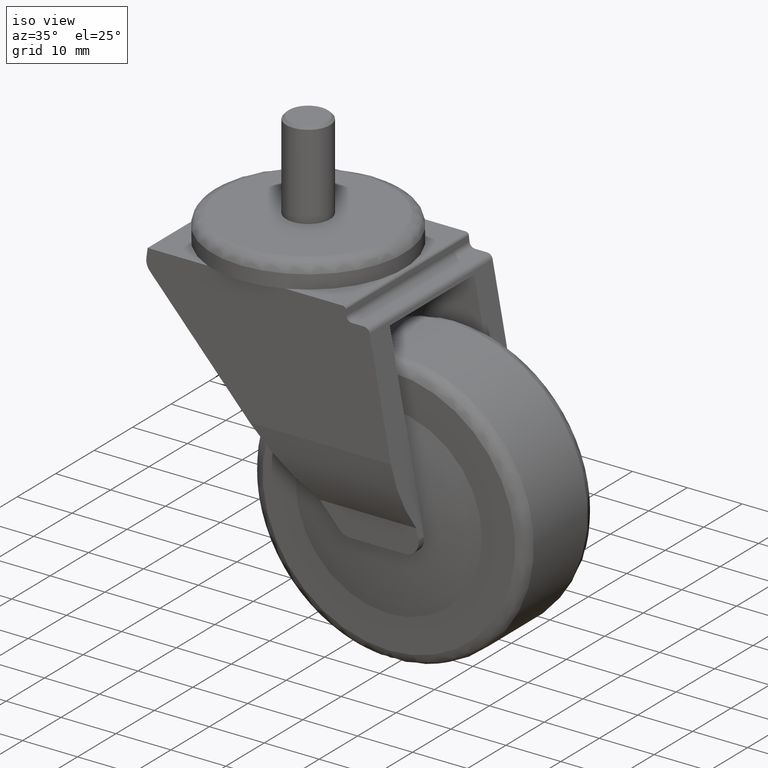
[diagram: clean part render]
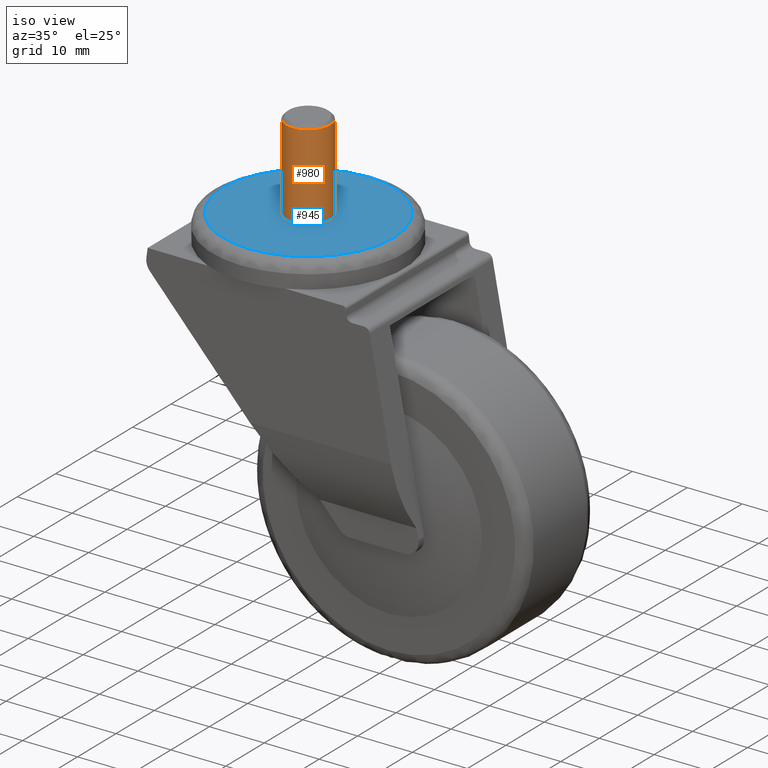
[diagram: same view with the hole feature highlighted: cylindrical wall and planar end face, labeled with their STEP entity ids]
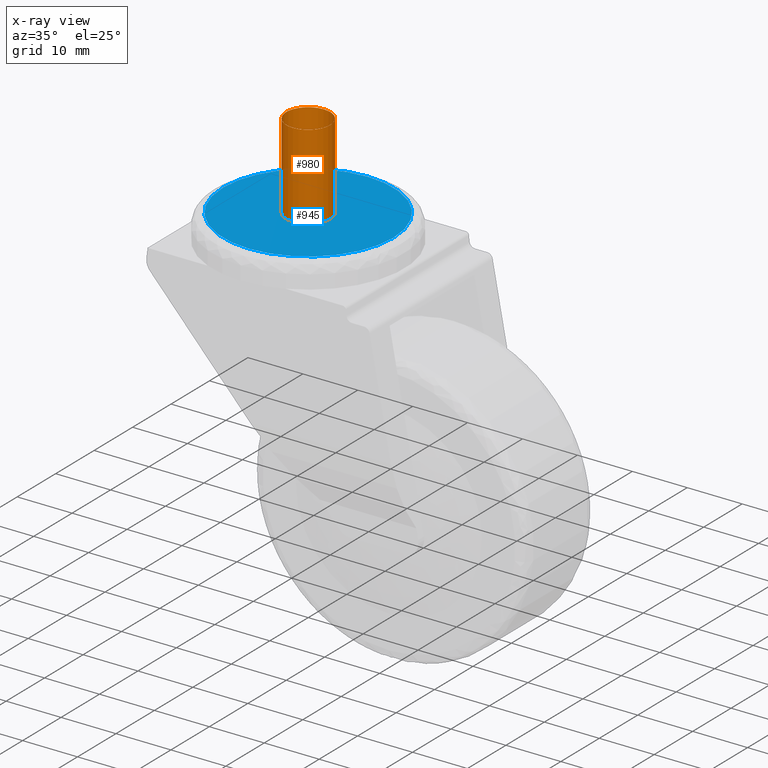
[diagram: x-ray of the same camera — body ghosted, the hole faces saturated]
A machine part, iso view. The highlighted faces form one hole feature of diameter 8 mm: the cylindrical wall (entity #980, orange) and its adjacent planar end face (entity #945, blue) — they share a circular edge in the B-rep.
The next image is the same camera in x-ray (body ghosted, the hole faces saturated) — the bore reads through the body.
Wall:
#925=CARTESIAN_POINT('',(0.0,-3.999999999983629,2.449294E-016));
#926=VERTEX_POINT('',#925);
#927=CARTESIAN_POINT('',(0.0,3.999999999983629,-2.449294E-016));
#928=VERTEX_POINT('',#927);
#929=CARTESIAN_POINT('',(0.0,0.0,0.0));
#930=DIRECTION('',(0.0,6.123234E-017,1.0));
#931=DIRECTION('',(0.0,1.0,-6.123234E-017));
#932=AXIS2_PLACEMENT_3D('',#929,#930,#931);
#933=CIRCLE('',#932,3.999999999983629);
#934=EDGE_CURVE('',#926,#928,#933,.T.);
#936=CARTESIAN_POINT('',(0.0,0.0,0.0));
#937=DIRECTION('',(0.0,6.123234E-017,1.0));
#938=DIRECTION('',(0.0,1.0,-6.123234E-017));
#939=AXIS2_PLACEMENT_3D('',#936,#937,#938);
#940=CIRCLE('',#939,3.999999999983629);
#941=EDGE_CURVE('',#928,#926,#940,.T.);
#946=CARTESIAN_POINT('',(0.0,0.0,0.0));
#947=DIRECTION('',(0.0,6.123234E-017,1.0));
#948=DIRECTION('',(0.0,1.0,-6.123234E-017));
#949=AXIS2_PLACEMENT_3D('',#946,#947,#948);
#950=CYLINDRICAL_SURFACE('',#949,3.999999999983629);
#951=ORIENTED_EDGE('',*,*,#941,.T.);
#952=ORIENTED_EDGE('',*,*,#934,.T.);
#953=CARTESIAN_POINT('',(0.0,3.999999999983630,15.499999999937996));
#954=VERTEX_POINT('',#953);
#955=CARTESIAN_POINT('',(0.0,3.999999999983629,0.0));
#956=DIRECTION('',(0.0,0.0,1.0));
#957=VECTOR('',#956,15.499999999937996);
#958=LINE('',#955,#957);
#959=EDGE_CURVE('',#928,#954,#958,.T.);
#960=ORIENTED_EDGE('',*,*,#959,.T.);
#961=CARTESIAN_POINT('',(0.0,-3.999999999983628,15.499999999938000));
#962=VERTEX_POINT('',#961);
#963=CARTESIAN_POINT('',(0.0,9.491013E-016,15.499999999937998));
#964=DIRECTION('',(0.0,5.053215E-016,1.0));
#965=DIRECTION('',(0.0,1.0,-5.053215E-016));
#966=AXIS2_PLACEMENT_3D('',#963,#964,#965);
#967=CIRCLE('',#966,3.999999999983629);
#968=EDGE_CURVE('',#962,#954,#967,.T.);
#969=ORIENTED_EDGE('',*,*,#968,.F.);
#970=CARTESIAN_POINT('',(0.0,9.491013E-016,15.499999999937998));
#971=DIRECTION('',(0.0,5.053215E-016,1.0));
#972=DIRECTION('',(0.0,1.0,-5.053215E-016));
#973=AXIS2_PLACEMENT_3D('',#970,#971,#972);
#974=CIRCLE('',#973,3.999999999983629);
#975=EDGE_CURVE('',#954,#962,#974,.T.);
#976=ORIENTED_EDGE('',*,*,#975,.F.);
#977=ORIENTED_EDGE('',*,*,#959,.F.);
#978=EDGE_LOOP('',(#951,#952,#960,#969,#976,#977));
#979=FACE_OUTER_BOUND('',#978,.T.);
#980=ADVANCED_FACE('',(#979),#950,.T.);
End face:
#887=CARTESIAN_POINT('',(0.0,15.499995637438506,-9.491010E-016));
#888=VERTEX_POINT('',#887);
#896=CARTESIAN_POINT('',(0.0,-15.499995637438506,9.491010E-016));
#897=VERTEX_POINT('',#896);
#898=CARTESIAN_POINT('',(0.0,0.0,0.0));
#899=DIRECTION('',(0.0,6.123234E-017,1.0));
#900=DIRECTION('',(0.0,1.0,-6.123234E-017));
#901=AXIS2_PLACEMENT_3D('',#898,#899,#900);
#902=CIRCLE('',#901,15.499995637438506);
#903=EDGE_CURVE('',#897,#888,#902,.T.);
#905=CARTESIAN_POINT('',(0.0,0.0,0.0));
#906=DIRECTION('',(0.0,6.123234E-017,1.0));
#907=DIRECTION('',(0.0,1.0,-6.123234E-017));
#908=AXIS2_PLACEMENT_3D('',#905,#906,#907);
#909=CIRCLE('',#908,15.499995637438506);
#910=EDGE_CURVE('',#888,#897,#909,.T.);
#916=CARTESIAN_POINT('',(30.999991274877011,30.999991274877011,-1.898202E-015));
#917=DIRECTION('',(0.0,0.0,1.0));
#918=DIRECTION('',(-1.0,0.0,0.0));
#919=AXIS2_PLACEMENT_3D('',#916,#917,#918);
#920=PLANE('',#919);
#921=ORIENTED_EDGE('',*,*,#910,.T.);
#922=ORIENTED_EDGE('',*,*,#903,.T.);
#923=EDGE_LOOP('',(#921,#922));
#924=FACE_OUTER_BOUND('',#923,.T.);
#925=CARTESIAN_POINT('',(0.0,-3.999999999983629,2.449294E-016));
#926=VERTEX_POINT('',#925);
#927=CARTESIAN_POINT('',(0.0,3.999999999983629,-2.449294E-016));
#928=VERTEX_POINT('',#927);
#929=CARTESIAN_POINT('',(0.0,0.0,0.0));
#930=DIRECTION('',(0.0,6.123234E-017,1.0));
#931=DIRECTION('',(0.0,1.0,-6.123234E-017));
#932=AXIS2_PLACEMENT_3D('',#929,#930,#931);
#933=CIRCLE('',#932,3.999999999983629);
#934=EDGE_CURVE('',#926,#928,#933,.T.);
#935=ORIENTED_EDGE('',*,*,#934,.F.);
#936=CARTESIAN_POINT('',(0.0,0.0,0.0));
#937=DIRECTION('',(0.0,6.123234E-017,1.0));
#938=DIRECTION('',(0.0,1.0,-6.123234E-017));
#939=AXIS2_PLACEMENT_3D('',#936,#937,#938);
#940=CIRCLE('',#939,3.999999999983629);
#941=EDGE_CURVE('',#928,#926,#940,.T.);
#942=ORIENTED_EDGE('',*,*,#941,.F.);
#943=EDGE_LOOP('',(#935,#942));
#944=FACE_BOUND('',#943,.T.);
#945=ADVANCED_FACE('',(#924,#944),#920,.T.);